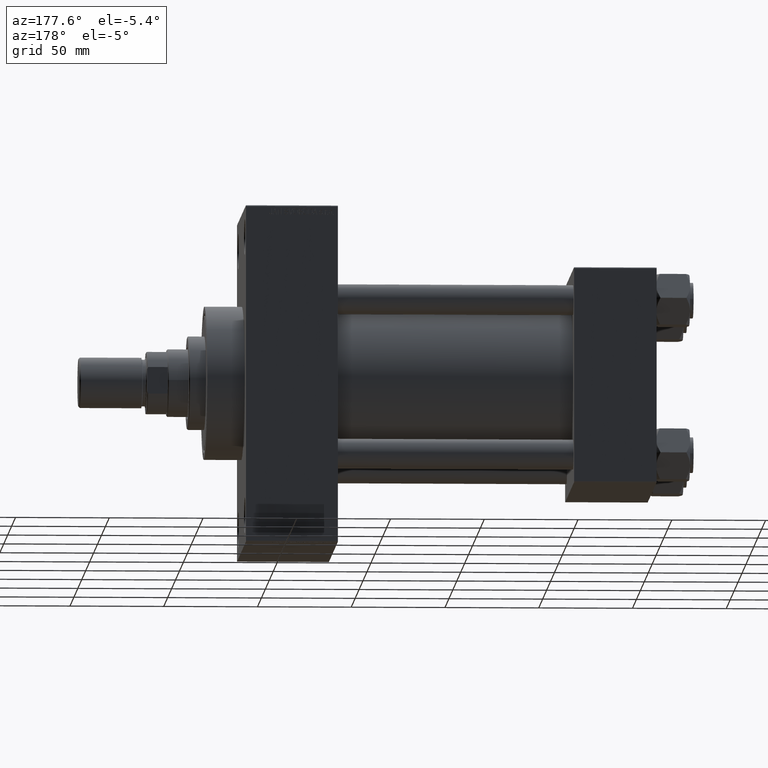
[diagram: clean part render]
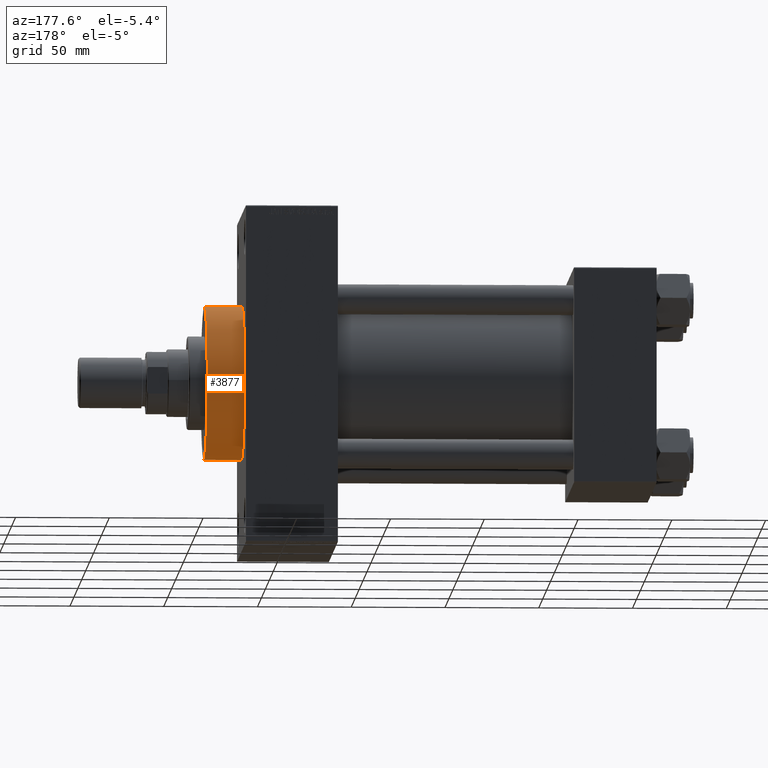
[diagram: same view with one face highlighted and labeled with its STEP entity id]
A machine part, auxiliary view. The second image highlights one B-rep face of the part: STEP entity #3877.
In plain terms, the highlighted cylindrical surface (partial cylindrical patch) has radius 41 mm, axis along (-1, -0, -0).
Its self-contained STEP definition (entity closure, byte-faithful):
#945 = VERTEX_POINT ( 'NONE', #17708 ) ;
#1176 = EDGE_LOOP ( 'NONE', ( #18683, #24442, #2052, #22355 ) ) ;
#2052 = ORIENTED_EDGE ( 'NONE', *, *, #13744, .T. ) ;
#3357 = DIRECTION ( 'NONE',  ( 0.000000000000000000, 0.000000000000000000, 1.000000000000000000 ) ) ;
#3877 = ADVANCED_FACE ( 'NONE', ( #21183 ), #45078, .T. ) ;
#4864 = LINE ( 'NONE', #12205, #45110 ) ;
#6365 = CIRCLE ( 'NONE', #12590, 41.00000000000000000 ) ;
#10451 = CARTESIAN_POINT ( 'NONE',  ( 238.9999999999999716, 0.000000000000000000, 0.000000000000000000 ) ) ;
#10681 = DIRECTION ( 'NONE',  ( -1.000000000000000000, -0.000000000000000000, -0.000000000000000000 ) ) ;
#12205 = CARTESIAN_POINT ( 'NONE',  ( 238.9999999999999716, 0.000000000000000000, 41.00000000000000000 ) ) ;
#12590 = AXIS2_PLACEMENT_3D ( 'NONE', #10451, #21938, #32953 ) ;
#13163 = DIRECTION ( 'NONE',  ( 1.000000000000000000, 0.000000000000000000, 0.000000000000000000 ) ) ;
#13744 = EDGE_CURVE ( 'NONE', #46337, #31250, #15019, .T. ) ;
#15019 = CIRCLE ( 'NONE', #23587, 41.00000000000000000 ) ;
#15887 = CARTESIAN_POINT ( 'NONE',  ( 218.9999999999999716, 0.000000000000000000, 0.000000000000000000 ) ) ;
#16843 = DIRECTION ( 'NONE',  ( 0.000000000000000000, 0.000000000000000000, -1.000000000000000000 ) ) ;
#17708 = CARTESIAN_POINT ( 'NONE',  ( 238.9999999999999716, 0.000000000000000000, 41.00000000000000000 ) ) ;
#17902 = VERTEX_POINT ( 'NONE', #26518 ) ;
#18277 = DIRECTION ( 'NONE',  ( -1.000000000000000000, -0.000000000000000000, -0.000000000000000000 ) ) ;
#18683 = ORIENTED_EDGE ( 'NONE', *, *, #37933, .F. ) ;
#21183 = FACE_OUTER_BOUND ( 'NONE', #1176, .T. ) ;
#21938 = DIRECTION ( 'NONE',  ( 1.000000000000000000, 0.000000000000000000, 0.000000000000000000 ) ) ;
#22355 = ORIENTED_EDGE ( 'NONE', *, *, #26241, .F. ) ;
#23587 = AXIS2_PLACEMENT_3D ( 'NONE', #15887, #13163, #16843 ) ;
#24442 = ORIENTED_EDGE ( 'NONE', *, *, #34514, .T. ) ;
#25716 = AXIS2_PLACEMENT_3D ( 'NONE', #36844, #10681, #3357 ) ;
#26241 = EDGE_CURVE ( 'NONE', #945, #31250, #4864, .T. ) ;
#26518 = CARTESIAN_POINT ( 'NONE',  ( 238.9999999999999716, 5.021051876504148963E-15, -41.00000000000000000 ) ) ;
#29042 = CARTESIAN_POINT ( 'NONE',  ( 238.9999999999999716, 5.021051876504148963E-15, -41.00000000000000000 ) ) ;
#30444 = VECTOR ( 'NONE', #18277, 1000.000000000000000 ) ;
#31250 = VERTEX_POINT ( 'NONE', #41818 ) ;
#32953 = DIRECTION ( 'NONE',  ( 0.000000000000000000, 0.000000000000000000, -1.000000000000000000 ) ) ;
#34514 = EDGE_CURVE ( 'NONE', #17902, #46337, #44434, .T. ) ;
#36252 = CARTESIAN_POINT ( 'NONE',  ( 218.9999999999999716, 5.021051876504148963E-15, -41.00000000000000000 ) ) ;
#36844 = CARTESIAN_POINT ( 'NONE',  ( 238.9999999999999716, 0.000000000000000000, 0.000000000000000000 ) ) ;
#37933 = EDGE_CURVE ( 'NONE', #17902, #945, #6365, .T. ) ;
#41818 = CARTESIAN_POINT ( 'NONE',  ( 218.9999999999999716, 0.000000000000000000, 41.00000000000000000 ) ) ;
#44434 = LINE ( 'NONE', #29042, #30444 ) ;
#44988 = DIRECTION ( 'NONE',  ( -1.000000000000000000, -0.000000000000000000, -0.000000000000000000 ) ) ;
#45078 = CYLINDRICAL_SURFACE ( 'NONE', #25716, 41.00000000000000000 ) ;
#45110 = VECTOR ( 'NONE', #44988, 1000.000000000000000 ) ;
#46337 = VERTEX_POINT ( 'NONE', #36252 ) ;